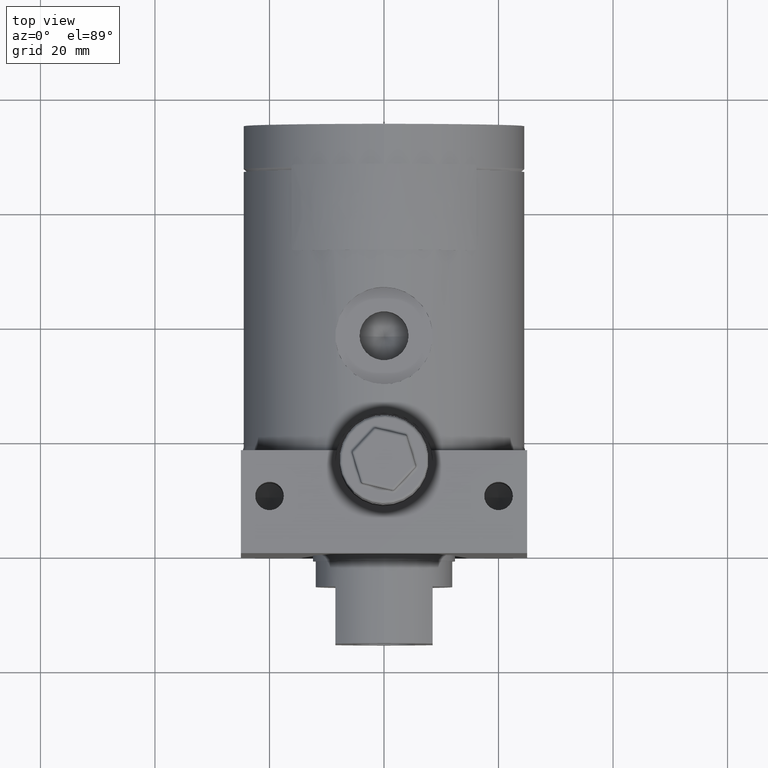
[diagram: clean part render]
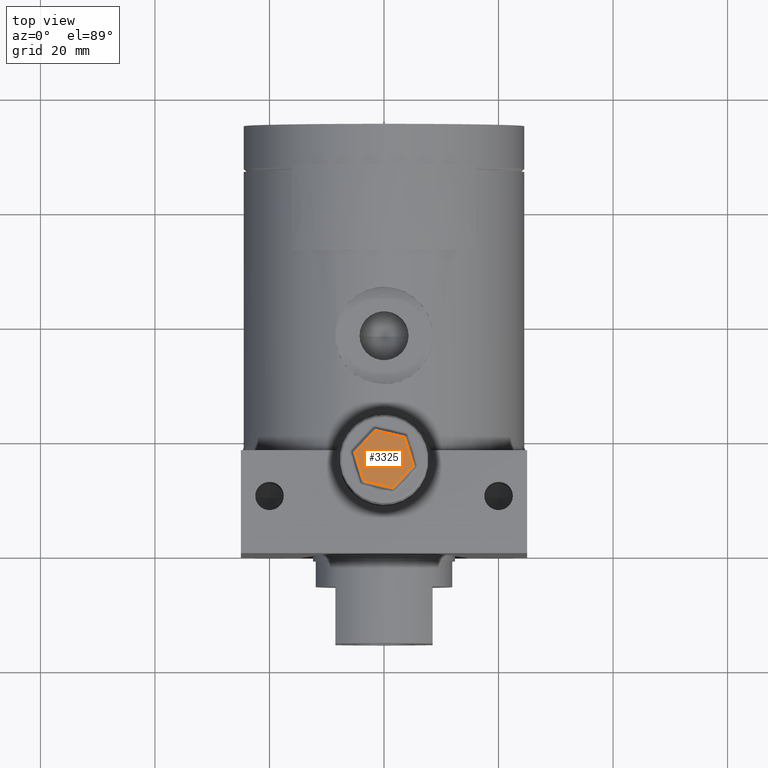
[diagram: same view with one face highlighted and labeled with its STEP entity id]
A machine part, top view. The second image highlights one B-rep face of the part: STEP entity #3325.
In plain terms, the highlighted planar face has unit normal (-0, 0, -1).
Its self-contained STEP definition (entity closure, byte-faithful):
#6 = EDGE_CURVE ( 'NONE', #7732, #9329, #1995, .T. ) ;
#957 = VECTOR ( 'NONE', #2905, 1000.000000000000100 ) ;
#1107 = ORIENTED_EDGE ( 'NONE', *, *, #4315, .T. ) ;
#1467 = CARTESIAN_POINT ( 'NONE',  ( -3.553064129880399800, 12.20846531217800100, 50.50000000000000000 ) ) ;
#1623 = LINE ( 'NONE', #10754, #5034 ) ;
#1640 = CARTESIAN_POINT ( 'NONE',  ( -5.060097423923929600, 17.18127645384069900, 50.50000000000000000 ) ) ;
#1673 = CARTESIAN_POINT ( 'NONE',  ( 5.060097423923949100, 14.81872354615930100, 50.50000000000000000 ) ) ;
#1882 = DIRECTION ( 'NONE',  ( -2.371457602955495200E-017, 5.115852289530973400E-017, -1.000000000000000000 ) ) ;
#1995 = LINE ( 'NONE', #10023, #8572 ) ;
#2226 = VECTOR ( 'NONE', #7857, 1000.000000000000100 ) ;
#2585 = AXIS2_PLACEMENT_3D ( 'NONE', #7772, #1882, #3599 ) ;
#2728 = DIRECTION ( 'NONE',  ( 0.9738162032760707700, -0.2273367595374281800, 5.583753221087132200E-017 ) ) ;
#2905 = DIRECTION ( 'NONE',  ( 0.6837875106114833500, 0.7296811908852731700, 2.111368100172498000E-017 ) ) ;
#3280 = ORIENTED_EDGE ( 'NONE', *, *, #4519, .T. ) ;
#3325 = ADVANCED_FACE ( 'NONE', ( #8862 ), #7806, .F. ) ;
#3414 = EDGE_CURVE ( 'NONE', #7424, #8757, #9387, .T. ) ;
#3599 = DIRECTION ( 'NONE',  ( 0.6837875106114832400, 0.7296811908852731700, 2.111368100172498000E-017 ) ) ;
#3734 = CARTESIAN_POINT ( 'NONE',  ( 3.469340057989104900, 20.06780197346990100, 50.50000000000000000 ) ) ;
#3807 = DIRECTION ( 'NONE',  ( -0.2900286926645878100, 0.9570179504227023200, -3.472385120914477400E-017 ) ) ;
#4065 = DIRECTION ( 'NONE',  ( -0.6837875106114833500, -0.7296811908852731700, -2.111368100172182800E-017 ) ) ;
#4138 = VERTEX_POINT ( 'NONE', #1467 ) ;
#4315 = EDGE_CURVE ( 'NONE', #4138, #7424, #5968, .T. ) ;
#4519 = EDGE_CURVE ( 'NONE', #9329, #4138, #1623, .T. ) ;
#5034 = VECTOR ( 'NONE', #9051, 1000.000000000000200 ) ;
#5197 = CARTESIAN_POINT ( 'NONE',  ( 1.507033294043544900, 11.02718885833732000, 50.50000000000000000 ) ) ;
#5571 = ORIENTED_EDGE ( 'NONE', *, *, #6089, .T. ) ;
#5593 = ORIENTED_EDGE ( 'NONE', *, *, #6, .T. ) ;
#5632 = LINE ( 'NONE', #3734, #8419 ) ;
#5968 = LINE ( 'NONE', #8637, #10396 ) ;
#6014 = CARTESIAN_POINT ( 'NONE',  ( 3.553064129880414900, 19.79153468782195100, 50.50000000000000000 ) ) ;
#6089 = EDGE_CURVE ( 'NONE', #8588, #7732, #10625, .T. ) ;
#6484 = ORIENTED_EDGE ( 'NONE', *, *, #7631, .T. ) ;
#7102 = CARTESIAN_POINT ( 'NONE',  ( 1.309640842383530000, 10.81654804234722000, 50.50000000000000000 ) ) ;
#7169 = EDGE_LOOP ( 'NONE', ( #5571, #5593, #3280, #1107, #8719, #6484 ) ) ;
#7424 = VERTEX_POINT ( 'NONE', #5197 ) ;
#7475 = CARTESIAN_POINT ( 'NONE',  ( -1.507033294043540000, 20.97281114166264600, 50.50000000000000000 ) ) ;
#7631 = EDGE_CURVE ( 'NONE', #8757, #8588, #5632, .T. ) ;
#7732 = VERTEX_POINT ( 'NONE', #7475 ) ;
#7772 = CARTESIAN_POINT ( 'NONE',  ( -5.622330471026590000, 17.31252939315630400, 50.50000000000000000 ) ) ;
#7806 = PLANE ( 'NONE',  #2585 ) ;
#7857 = DIRECTION ( 'NONE',  ( -0.9738162032760706600, 0.2273367595374286600, -5.583753221086972000E-017 ) ) ;
#8419 = VECTOR ( 'NONE', #3807, 1000.000000000000000 ) ;
#8572 = VECTOR ( 'NONE', #4065, 1000.000000000000100 ) ;
#8588 = VERTEX_POINT ( 'NONE', #6014 ) ;
#8637 = CARTESIAN_POINT ( 'NONE',  ( -6.645345888945009900, 12.93035647841400000, 50.50000000000000000 ) ) ;
#8719 = ORIENTED_EDGE ( 'NONE', *, *, #3414, .T. ) ;
#8757 = VERTEX_POINT ( 'NONE', #1673 ) ;
#8862 = FACE_OUTER_BOUND ( 'NONE', #7169, .T. ) ;
#9051 = DIRECTION ( 'NONE',  ( 0.2900286926645882500, -0.9570179504227021000, 3.472385120914471800E-017 ) ) ;
#9329 = VERTEX_POINT ( 'NONE', #1640 ) ;
#9387 = LINE ( 'NONE', #7102, #957 ) ;
#10023 = CARTESIAN_POINT ( 'NONE',  ( -5.257489875583960500, 16.97063563785055300, 50.50000000000000000 ) ) ;
#10396 = VECTOR ( 'NONE', #2728, 1000.000000000000000 ) ;
#10424 = CARTESIAN_POINT ( 'NONE',  ( -4.599315053108160400, 21.69470230789865200, 50.50000000000000000 ) ) ;
#10625 = LINE ( 'NONE', #10424, #2226 ) ;
#10754 = CARTESIAN_POINT ( 'NONE',  ( -5.143821495815219100, 17.45754373948859900, 50.50000000000000000 ) ) ;